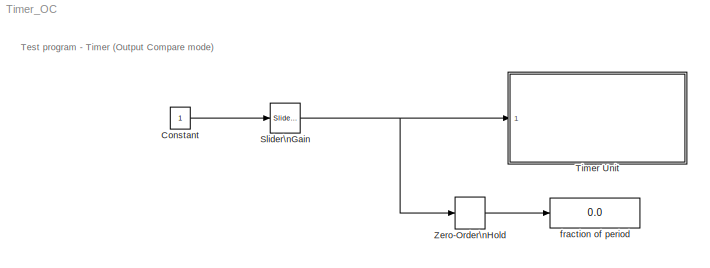
MODEL Timer_OC
KIND model
BLOCK [Constant] Constant
  SID = 1
BLOCK [Reference] Slider\nGain  REF=simulink/Math\nOperations/Slider\nGain
  FunctionWithSeparateData = off
  Ports = [1, 1]
  RTWMemSecDataConstants = Inherit from model
  RTWMemSecDataInternal = Inherit from model
  RTWMemSecDataParameters = Inherit from model
  RTWMemSecFuncExecute = Inherit from model
  RTWMemSecFuncInitTerm = Inherit from model
  SID = 2
  ShowPortLabels = FromPortIcon
  SourceBlock = simulink/Math\nOperations/Slider\nGain
  SourceProductBaseCode = SL
  SourceProductName = Simulink
  SourceType = Slider Gain
  SystemSampleTime = -1
  gain = 0.6
  high = 1
  low = 0
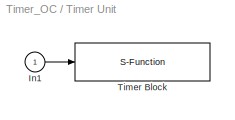
BLOCK [SubSystem] Timer Unit
  Ports = [1]
  RequestExecContextInheritance = off
  SID = 6
  ShowPortLabels = none
  Tag = mcTarget_timer
BLOCK [Inport] Timer Unit/In1
  IconDisplay = Port number
  SID = 6:7
BLOCK [S-Function] Timer Unit/Timer Block
  EnableBusSupport = off
  FunctionName = timer_sfcn_9S12
  Parameters = sampletime, timerMode
  Ports = [1]
  SFcnIsStateOwnerBlock = off
  SFunctionDeploymentMode = off
  SID = 6:8
  Tag = mcTarget_timer
BLOCK [ZeroOrderHold] Zero-Order\nHold
  SID = 4
  SampleTime = 0.1
BLOCK [Display] fraction of period
  Decimation = 1
  Ports = [1]
  SID = 5
ANNOTATION (root): Test program - Timer (Output Compare mode)
LINE Constant:1 -> Slider\nGain:1
NET Slider\nGain:1 -> Timer Unit:1, Zero-Order\nHold:1
LINE Timer Unit/In1:1 -> Timer Unit/Timer Block:1
LINE Zero-Order\nHold:1 -> fraction of period:1
note: NET lines group one-source signal fan-out (src -> all destinations, sorted); 1:1 wires keep LINE
